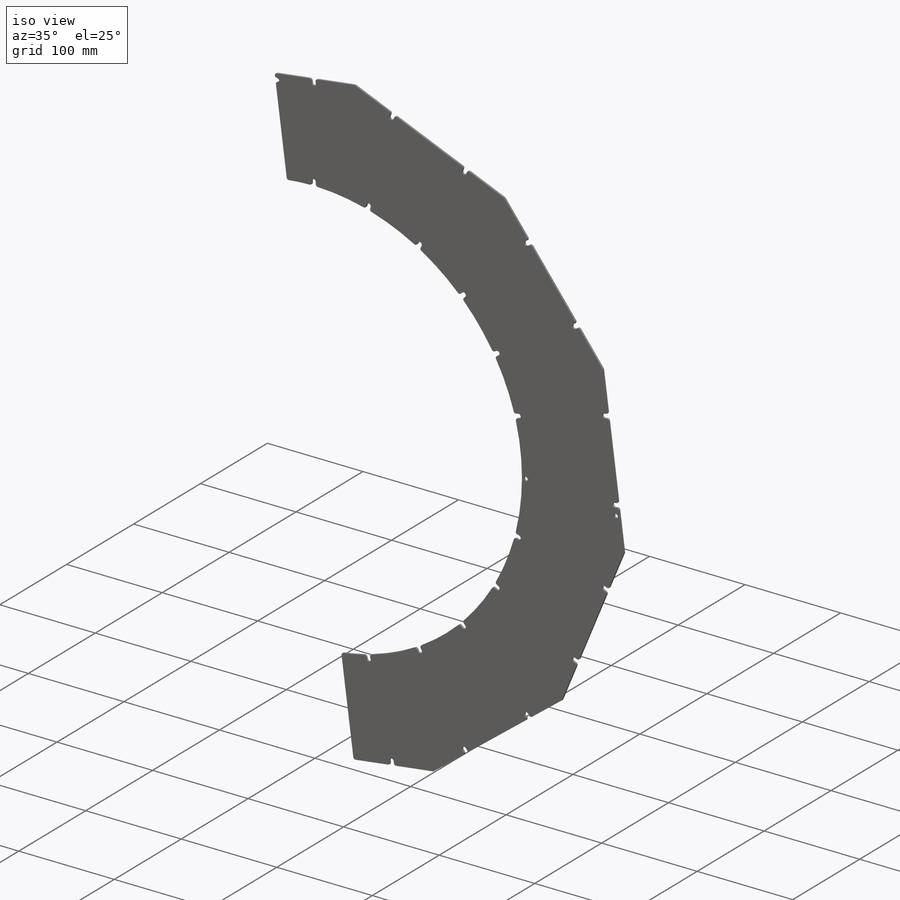
[diagram: iso view]
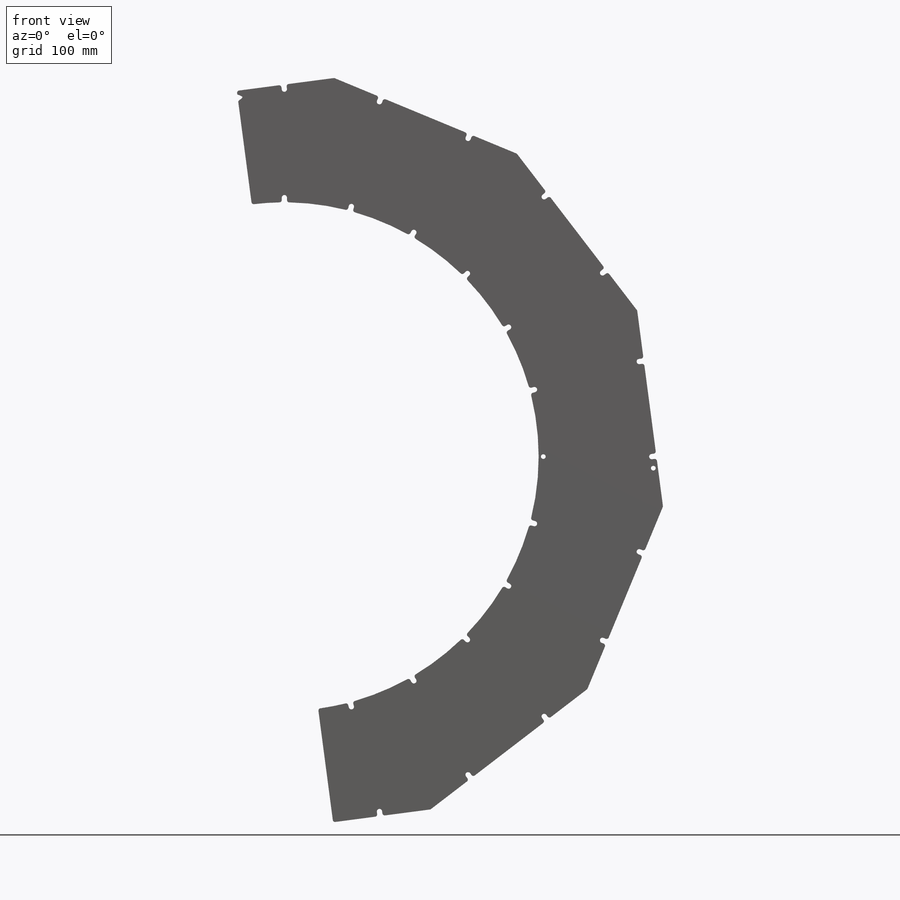
[diagram: front view]
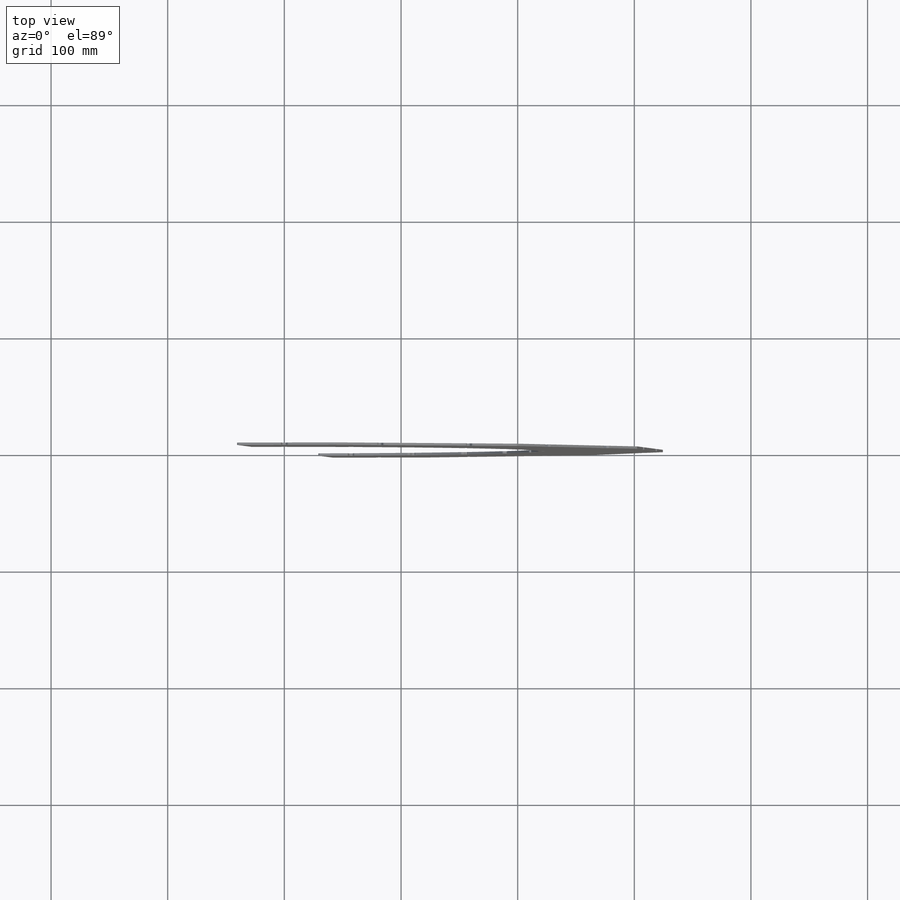
[diagram: top view]
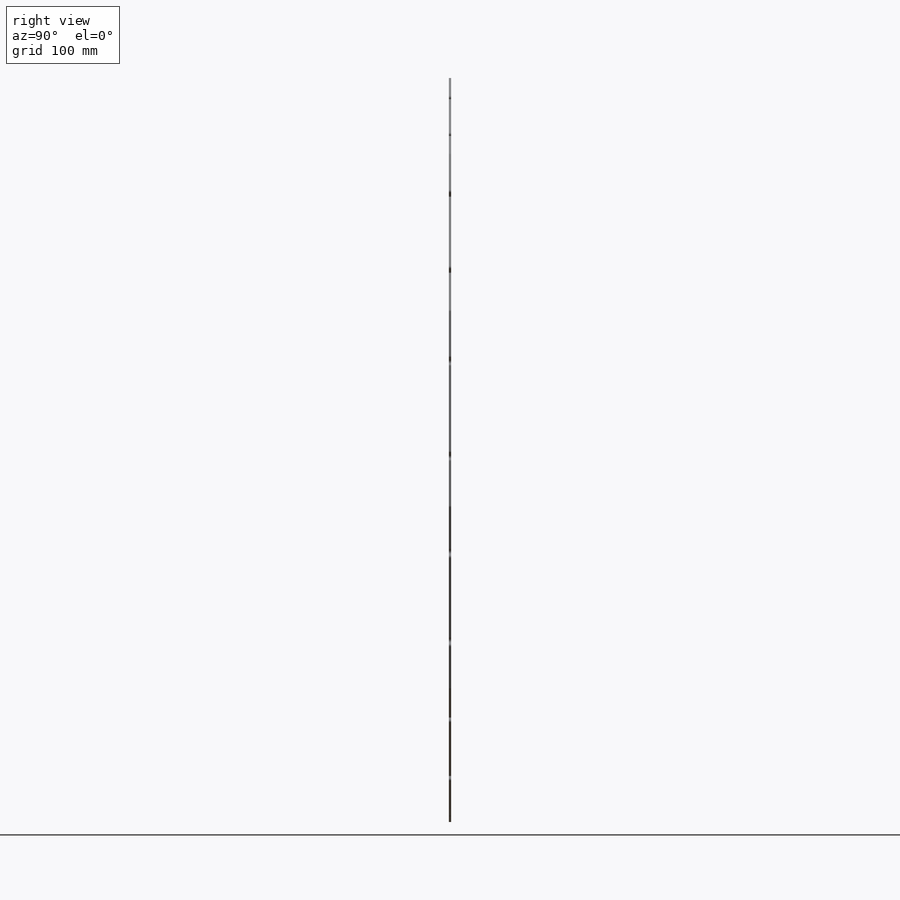
[diagram: right view]
SOLIDWORKS PART (.sldprt)
format: sldprt  version: not decoded by parser v0  size: 452,608 bytes
history: native  units: mm
features: sketch x7, cut_extrude x3, extrude x2, material x1, pattern_circular x1, fillet x1, hole x1 (+11 scaffold rows collapsed)
feature tree (27):
  scaffold x11  (default folders/planes/origin — collapsed)
  material  "6061-T6 (SS)"
  sketch  "Sketch1"  dims[c1.D2=436.0mm c1.D3=640.0mm c1.D1=0.5mm c1.D4=97.5deg c1.D5=316.25mm c1.D6=~283.043035mm c2.D6=30.0deg]
  extrude  "Boss-Extrude1"  Depth=2mm
  sketch  "Sketch2"  dims[D2=4.5mm D3=2.0mm D5=4.5mm D1=315.0mm D4=222.0mm]
  cut_extrude  "Cut-Extrude1"  [1 undecoded]
  sketch  "Sketch3"  dims[c1.D1=222.0mm c2.D1=15.0deg]
  cut_extrude  "Cut-Extrude2"  [1 undecoded]
  pattern_circular  "CirPattern1"  Count=6 Angle=30deg
  sketch  "Sketch4"  dims[D1=4.0mm D2=4.0mm]
  extrude  "Boss-Extrude3"  [1 undecoded]
  fillet  "Fillet1"  Radius=2mm
  hole  "Ø4.0 (4) Diameter Hole1"  Diameter=4mm Depth=2mm
  sketch  "Sketch6"  dims[D1=10.0mm]
  sketch  "Sketch7"  dims[hole-wizard template sketch: 60 standard entries collapsed; hole parameters kept: c18.Thru Hole Depth=2.0mm]
  sketch  "Sketch9"  dims[c1.D1=4.0mm c1.D3=1.0mm c1.D4=1.5mm c1.D5=1.0mm c1.D2=6.0mm c2.D4=~0.702212mm c3.D4=60.0deg]
  cut_extrude  "alignment_vee cut"  [1 undecoded]
decode coverage: 11 of 15 modeling features carry decoded parameters
note: ~ marks probable driven/reference dimensions
note: 4 parameter values undecoded
summary: no parameter record found for 4 features
note: suppression state not decoded; provenance and decode notes live in map.json
